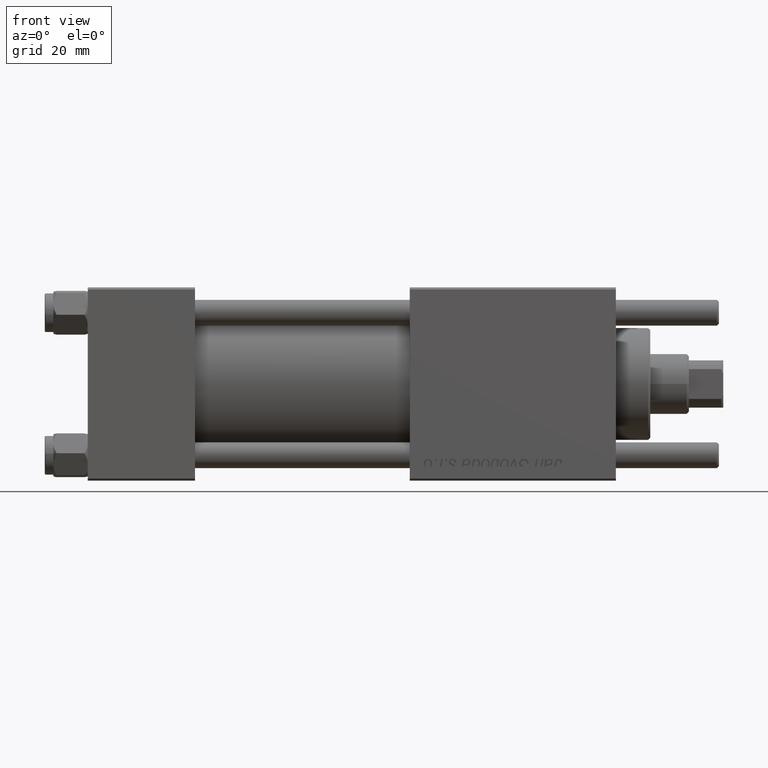
[diagram: clean part render]
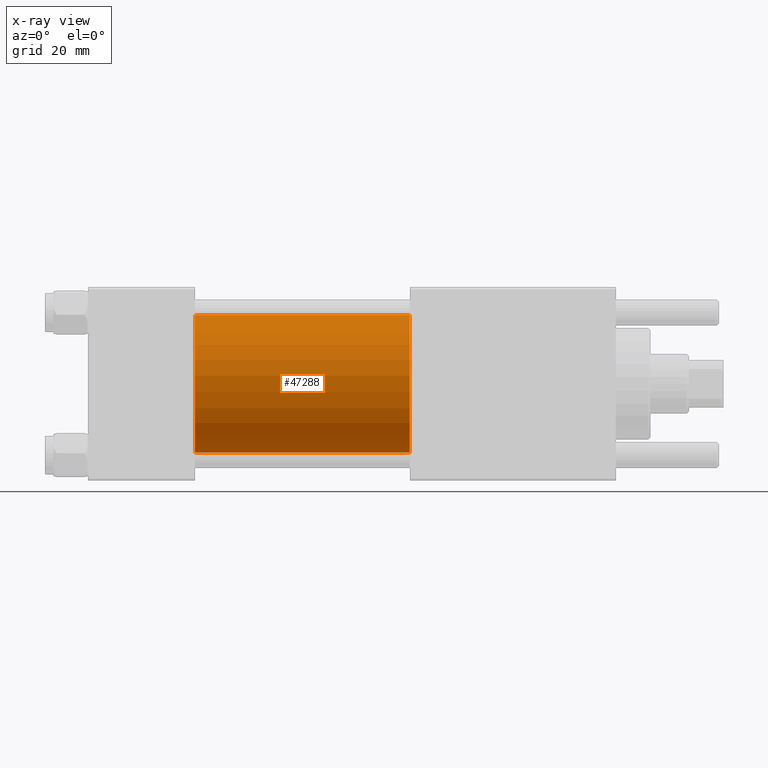
[diagram: x-ray — body ghosted, one internal face saturated and labeled with its STEP entity id]
A machine part, front view, then the same camera in x-ray: the body is ghosted and one INTERNAL B-rep face — a face not visible from any outside direction — is saturated and labeled: STEP entity #47288.
In plain terms, the highlighted cylindrical surface (partial cylindrical patch) has radius 16 mm, axis along (-1, -0, -0).
Its self-contained STEP definition (entity closure, byte-faithful):
#120 = CARTESIAN_POINT ( 'NONE',  ( 75.00000000000001421, -2.602085213965210642E-15, 16.00000000000000000 ) ) ;
#833 = AXIS2_PLACEMENT_3D ( 'NONE', #36054, #9852, #32865 ) ;
#2584 = AXIS2_PLACEMENT_3D ( 'NONE', #12742, #3520, #43545 ) ;
#2655 = CIRCLE ( 'NONE', #833, 16.00000000000000000 ) ;
#2800 = CARTESIAN_POINT ( 'NONE',  ( 75.00000000000001421, -6.426503353294456087E-16, -16.00000000000000000 ) ) ;
#3520 = DIRECTION ( 'NONE',  ( 1.000000000000000000, 0.000000000000000000, 0.000000000000000000 ) ) ;
#5554 = VERTEX_POINT ( 'NONE', #2800 ) ;
#6099 = VERTEX_POINT ( 'NONE', #13342 ) ;
#9852 = DIRECTION ( 'NONE',  ( 1.000000000000000000, 0.000000000000000000, 0.000000000000000000 ) ) ;
#10524 = ORIENTED_EDGE ( 'NONE', *, *, #15915, .T. ) ;
#12390 = CARTESIAN_POINT ( 'NONE',  ( 75.00000000000001421, -6.426503353294456087E-16, -16.00000000000000000 ) ) ;
#12742 = CARTESIAN_POINT ( 'NONE',  ( 75.00000000000001421, -2.602085213965210642E-15, 0.000000000000000000 ) ) ;
#13342 = CARTESIAN_POINT ( 'NONE',  ( 75.00000000000001421, -2.602085213965210642E-15, 16.00000000000000000 ) ) ;
#13914 = CYLINDRICAL_SURFACE ( 'NONE', #32002, 16.00000000000000000 ) ;
#14702 = ORIENTED_EDGE ( 'NONE', *, *, #31836, .T. ) ;
#15915 = EDGE_CURVE ( 'NONE', #6099, #5554, #47618, .T. ) ;
#18224 = DIRECTION ( 'NONE',  ( 0.000000000000000000, 0.000000000000000000, 1.000000000000000000 ) ) ;
#18831 = DIRECTION ( 'NONE',  ( -1.000000000000000000, -0.000000000000000000, -0.000000000000000000 ) ) ;
#20514 = ORIENTED_EDGE ( 'NONE', *, *, #49677, .F. ) ;
#20963 = VECTOR ( 'NONE', #18831, 1000.000000000000000 ) ;
#21978 = FACE_OUTER_BOUND ( 'NONE', #49940, .T. ) ;
#29984 = ORIENTED_EDGE ( 'NONE', *, *, #45506, .F. ) ;
#30120 = VERTEX_POINT ( 'NONE', #46009 ) ;
#30927 = LINE ( 'NONE', #120, #20963 ) ;
#31836 = EDGE_CURVE ( 'NONE', #5554, #30120, #46371, .T. ) ;
#32002 = AXIS2_PLACEMENT_3D ( 'NONE', #35222, #44706, #18224 ) ;
#32865 = DIRECTION ( 'NONE',  ( 0.000000000000000000, 0.000000000000000000, -1.000000000000000000 ) ) ;
#33293 = CARTESIAN_POINT ( 'NONE',  ( 25.00000000000000000, -2.602085213965210642E-15, 16.00000000000000000 ) ) ;
#34943 = VERTEX_POINT ( 'NONE', #33293 ) ;
#35222 = CARTESIAN_POINT ( 'NONE',  ( 75.00000000000001421, -2.602085213965210642E-15, 0.000000000000000000 ) ) ;
#36054 = CARTESIAN_POINT ( 'NONE',  ( 25.00000000000000000, -2.602085213965210642E-15, 0.000000000000000000 ) ) ;
#37736 = DIRECTION ( 'NONE',  ( -1.000000000000000000, -0.000000000000000000, -0.000000000000000000 ) ) ;
#43545 = DIRECTION ( 'NONE',  ( 0.000000000000000000, 0.000000000000000000, -1.000000000000000000 ) ) ;
#44706 = DIRECTION ( 'NONE',  ( -1.000000000000000000, -0.000000000000000000, -0.000000000000000000 ) ) ;
#45506 = EDGE_CURVE ( 'NONE', #6099, #34943, #30927, .T. ) ;
#46009 = CARTESIAN_POINT ( 'NONE',  ( 25.00000000000000000, -6.426503353294456087E-16, -16.00000000000000000 ) ) ;
#46371 = LINE ( 'NONE', #12390, #51648 ) ;
#47288 = ADVANCED_FACE ( 'NONE', ( #21978 ), #13914, .F. ) ;
#47618 = CIRCLE ( 'NONE', #2584, 16.00000000000000000 ) ;
#49677 = EDGE_CURVE ( 'NONE', #34943, #30120, #2655, .T. ) ;
#49940 = EDGE_LOOP ( 'NONE', ( #10524, #14702, #20514, #29984 ) ) ;
#51648 = VECTOR ( 'NONE', #37736, 1000.000000000000000 ) ;